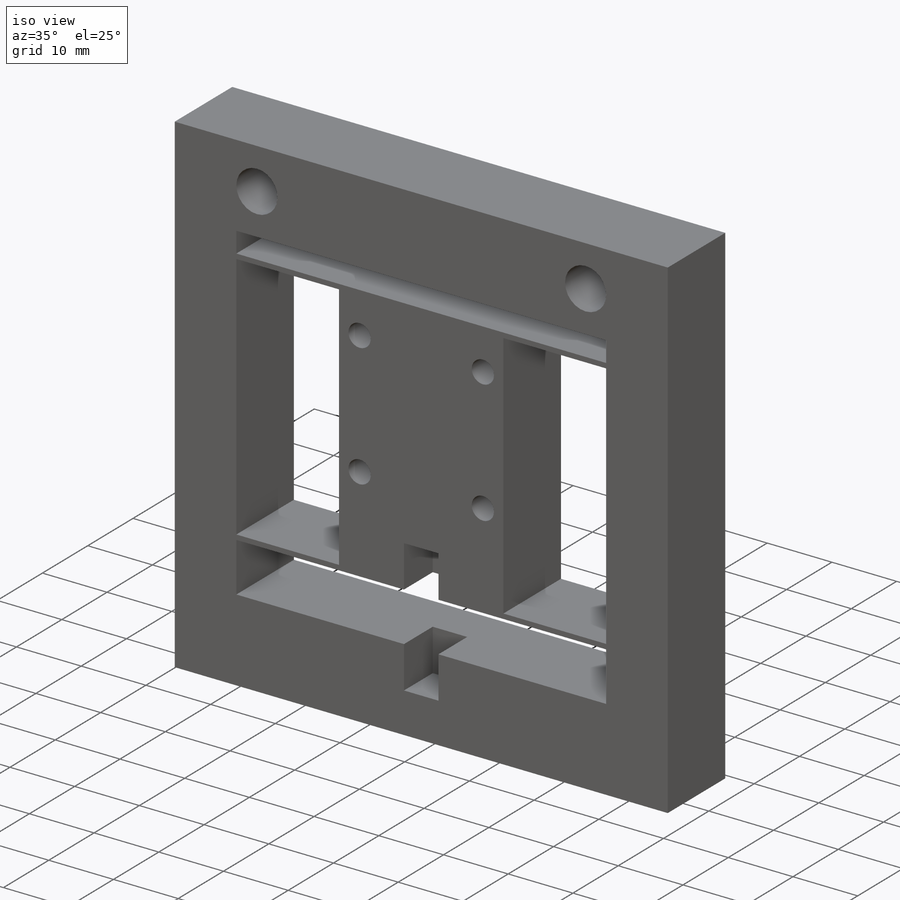
[diagram: iso view]
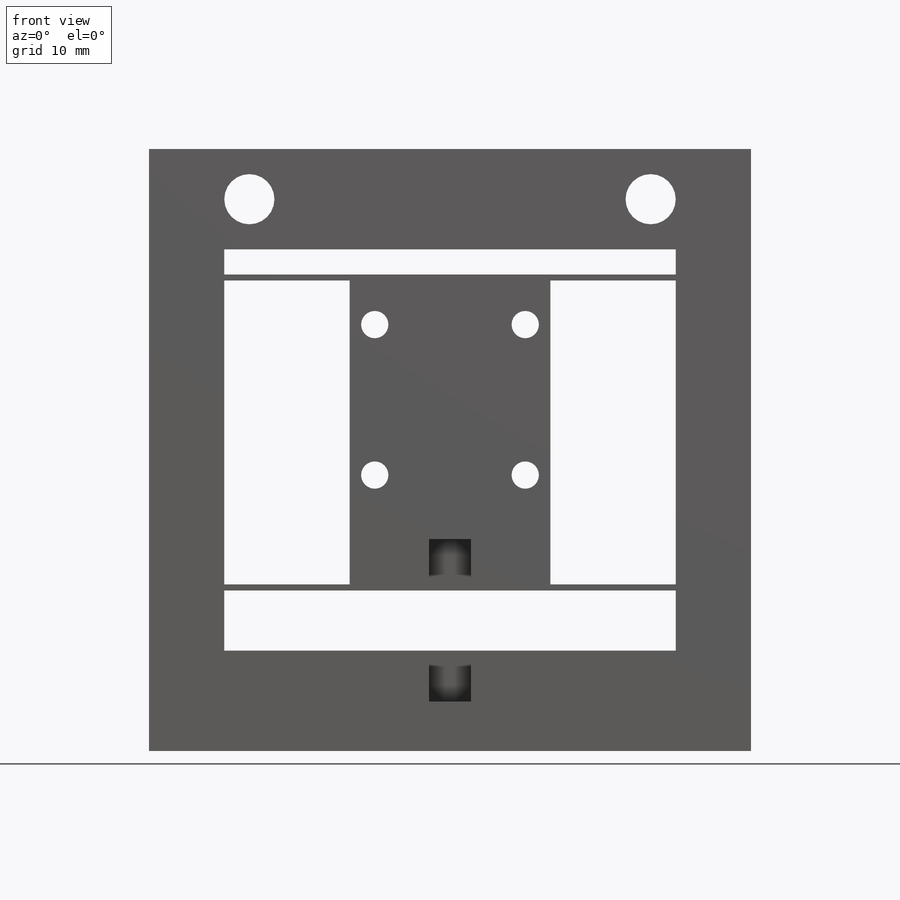
[diagram: front view]
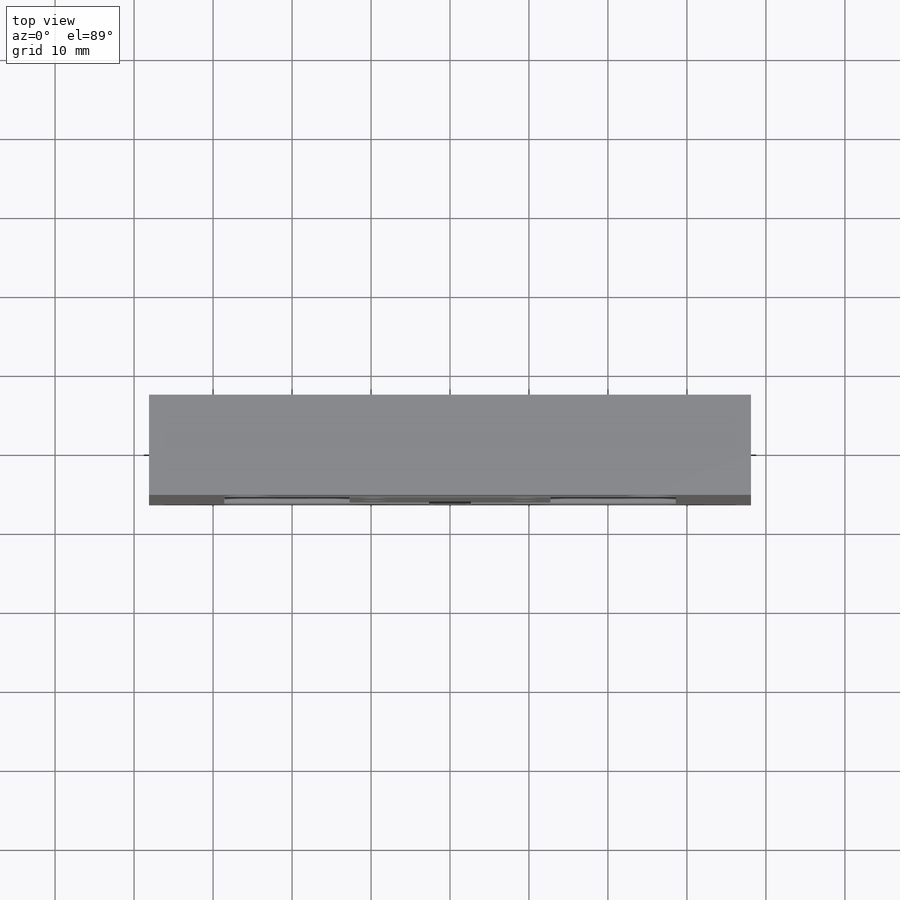
[diagram: top view]
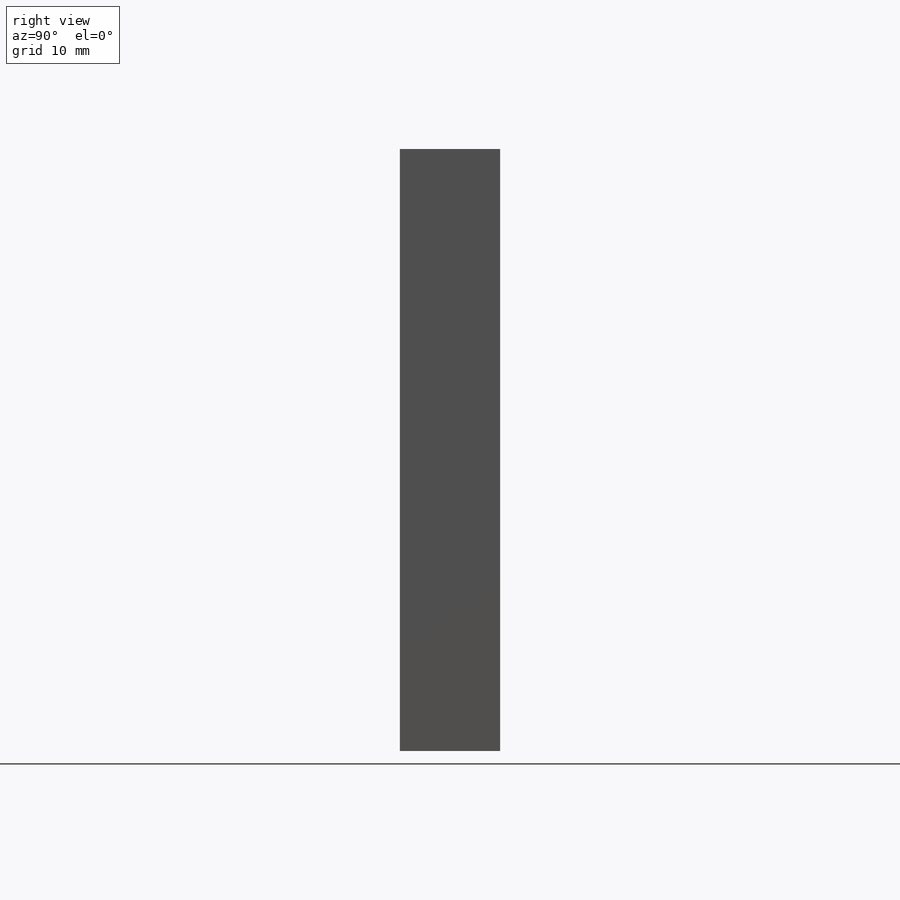
[diagram: right view]
SOLIDWORKS PART (.sldprt)
format: sldprt  version: not decoded by parser v0  size: 312,832 bytes
history: native  units: mm
features: sketch x7, thread x4, cut_extrude x2, hole x2, material x1, extrude x1 (+12 scaffold rows collapsed)
feature tree (29):
  scaffold x12  (default folders/planes/origin — collapsed)
  material  "6061 Alloy"
  sketch  "Sketch1"  dims[D1=38.1mm D2=38.1mm D3=38.1mm D4=38.1mm]
  extrude  "Boss-Extrude1"  Depth=12.7mm
  sketch  "Sketch2"  dims[D1=12.7mm D2=9.525mm D3=9.525mm D4=0.762mm D5=0.762mm D6=12.7mm D7=3.175mm D8=7.62mm D9=25.4mm D10=12.7mm]
  cut_extrude  "Cut-Extrude1"  [1 undecoded]
  sketch  "Sketch3"  dims[D1=2.667mm D2=2.667mm D3=20.574mm D4=6.477mm D5=6.477mm]
  cut_extrude  "Cut-Extrude2"  Depth=6.35mm
  hole  "1/4 (0.25) Diameter Hole1"  Diameter=6.35mm Depth=12.7mm
  sketch  "Sketch5"  dims[D1=25.4mm D2=25.4mm D3=6.35mm]
  sketch  "Sketch4"  dims[hole-wizard template sketch: 61 standard entries collapsed; hole parameters above]
  hole  "#8-32 Tapped Hole1"  Diameter=3.4544mm Depth=12.7mm
  sketch  "Sketch7"  dims[D1=9.525mm D2=9.525mm D3=3.175mm D4=15.875mm]
  sketch  "Sketch6"  dims[hole-wizard template sketch: 60 standard entries collapsed; hole parameters kept: c18.Thru Tap Drill Depth=12.7mm]
  thread  "Hole Thread1"  Diameter=4.1656mm  [1 undecoded]
  thread  "Hole Thread2"  Diameter=4.1656mm  [1 undecoded]
  thread  "Hole Thread3"  Diameter=4.1656mm  [1 undecoded]
  thread  "Hole Thread4"  Diameter=4.1656mm  [1 undecoded]
decode coverage: 15 of 16 modeling features carry decoded parameters
note: ~ marks probable driven/reference dimensions
note: 5 parameter values undecoded
note: suppression state not decoded; provenance and decode notes live in map.json
